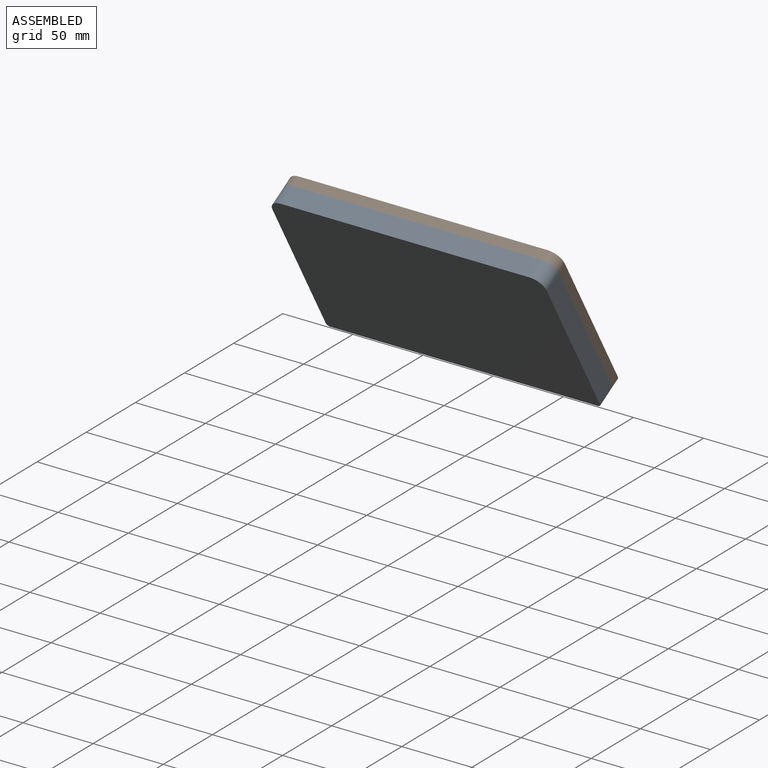
[diagram: assembled view]
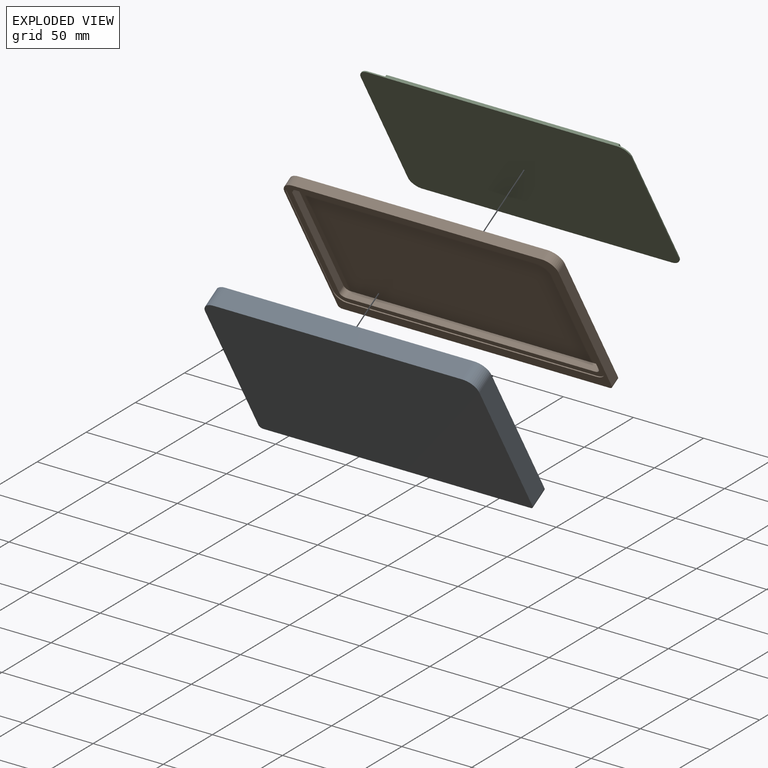
[diagram: exploded view]
GUIDED TOUR — MATED ASSEMBLY (Onshape document bb84c44a1d4bce17a46d19a1, AutoMate assembly bb84c44a1d4bce17a46d19a1_b7f1561dab899c9f86d58a68_f5c3d4f6c9674e467f2fc7fa_default)

This assembly has 3 components, labeled P0..P2 below (a component is one placed occurrence of a part; the same part can appear more than once), held together by 2 mates. A mate is a constraint between two components; its type names the relative motion it leaves free:
  FASTENED — locks the two components together rigidly (no relative motion).
Axis/direction vectors are unit vectors and 'through' points are millimeter coordinates, both in the assembly's world frame.

MATES
  1. FASTENED "Fastened 2": P1 <-> P0, direction (0.000, -0.866, -0.500) through (63.10, -5.15, 164.72) mm
  2. FASTENED "Fastened 1": P2 <-> P1, direction (0.000, -0.866, -0.500) through (63.10, -3.94, 164.04) mm

ASSEMBLY ORDER
  1. P1 — the base component [order verified]
  2. P2 [order verified]
  3. P0 [order verified]
(P2 verified with a relaxed clearance tolerance: the source model stores slight part interference there.)
Order-tag legend:
  [order verified] — this step's position reverses a verified removal order: the component was checked to insert without passing through the ones already placed.

Of the 3 components, 1 carries the full construction recipe — the FeatureScript program that regenerates the part's solid from scratch; the rest are supplied as boundary geometry only.
Each toured component is shown spotlighted twice — in the assembled view, then in the exploded view, where a leader line traces a displaced component back to its assembled socket (saturated green if recipe-attached, orange if geometry-only; every other component desaturated gray) — followed by its recipe or geometry summary and the mates that hold it.
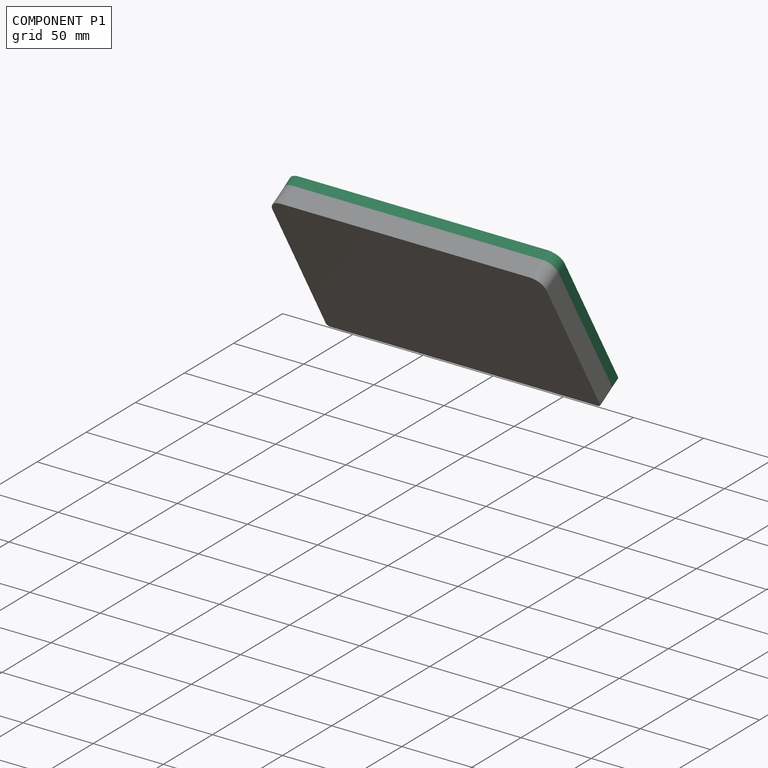
[diagram: component P1 — assembled]
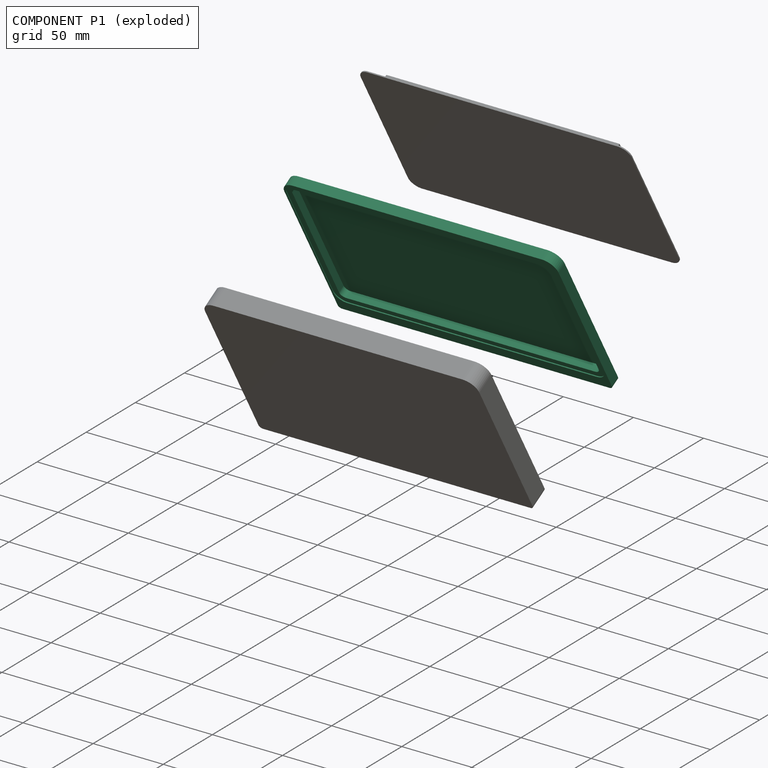
[diagram: component P1 — exploded]
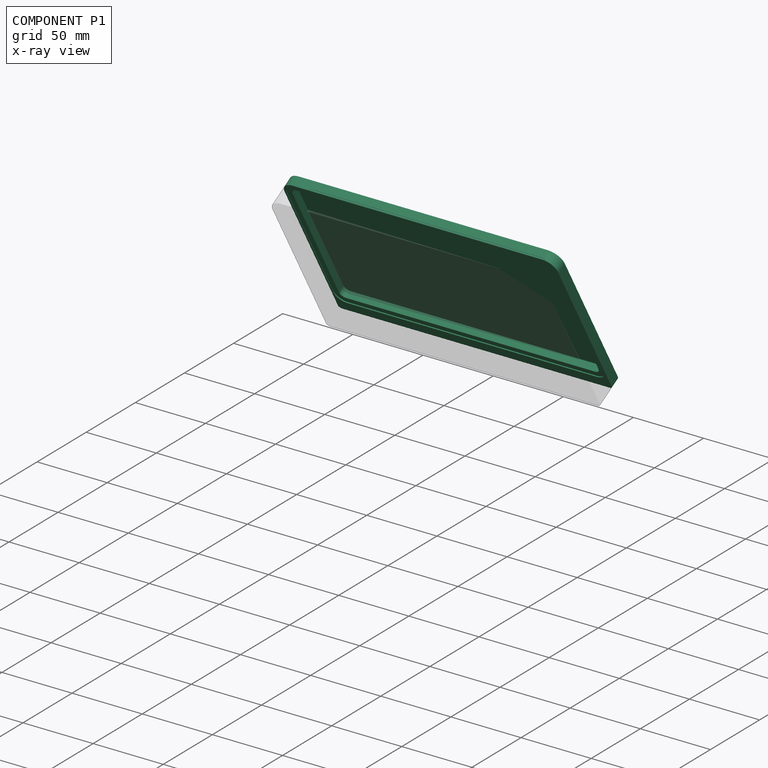
[diagram: component P1 — x-ray view]
COMPONENT P1 — recipe-attached (CADFS 00939960, mesh-verified: the recipe's output STEP matches this component's geometry to below the mesh-comparison resolution (tessellation chordal tolerance ~0.344 mm)).
Held by: FASTENED mate "Fastened 2" to P0; FASTENED mate "Fastened 1" to P2.
Construction recipe (FeatureScript — the CAD program that rebuilds this solid; sketch coordinates are in the units given by the * unit suffixes, e.g. mm):

FeatureScript 1948;
import(path : "onshape/std/geometry.fs", version : "1948.0");
import(path : "onshape/std/common.fs", version : "1948.0");
const mm = millimeter;
const VERTEX = EntityType.VERTEX;
const EDGE = EntityType.EDGE;
const FACE = EntityType.FACE;
const BODY = EntityType.BODY;
function v(x, y){return vector(x, y);}
function OD(order){return orderDisambiguation(order);}
function OSD(set){return originalSetDisambiguation(set);}
function TD(topology){return topologyDisambiguation(topology);}
function TDD(query){return trueDependencyDisambiguation(query);}
function sQuery(a, b, c) {return sketchEntityQuery(a, b, c);}

annotation { "Feature Type Name" : "Feature", "Feature Type Description" : "" }
export const myFeature = defineFeature(function(context is Context, id is Id, definition is map)
    precondition{}
    {
        {
            var Q0;
            Q0=qCreatedBy(makeId("Top.planeOp"),FACE);
            var sketch = newSketch(context, id + "F0", { "sketchPlane" : qUnion([Q0])});
            skLineSegment(sketch, "E0.bottom", {"start": v(-88.64, 56.51) * mm, "end": v(88.64, 56.51) * mm});
            skLineSegment(sketch, "E0.top", {"start": v(-88.64, -54.29) * mm, "end": v(88.64, -54.29) * mm});
            skLineSegment(sketch, "E0.left", {"start": v(-96.5, 48.65) * mm, "end": v(-96.5, -46.43) * mm});
            skLineSegment(sketch, "E0.right", {"start": v(96.5, 48.65) * mm, "end": v(96.5, -46.43) * mm});
            skPoint(sketch, "E1.visualSharp", {"position": v(-96.5, 56.51) * mm});
            skArc(sketch, "E1.filletArc", {"start": v(-88.64, 56.51) * mm, "mid": v(-94.2, 54.2) * mm, "end": v(-96.5, 48.65) * mm});
            skPoint(sketch, "E2.visualSharp", {"position": v(96.5, 56.51) * mm});
            skArc(sketch, "E2.filletArc", {"start": v(96.5, 48.65) * mm, "mid": v(94.2, 54.2) * mm, "end": v(88.64, 56.51) * mm});
            skPoint(sketch, "E3.visualSharp", {"position": v(96.5, -54.29) * mm});
            skArc(sketch, "E3.filletArc", {"start": v(88.64, -54.29) * mm, "mid": v(94.2, -51.99) * mm, "end": v(96.5, -46.43) * mm});
            skPoint(sketch, "E4.visualSharp", {"position": v(-96.5, -54.29) * mm});
            skArc(sketch, "E4.filletArc", {"start": v(-96.5, -46.43) * mm, "mid": v(-94.2, -51.99) * mm, "end": v(-88.64, -54.29) * mm});
            skArc(sketch, "E5.0", {"start": v(-88.64, 52.51) * mm, "mid": v(-91.37, 51.38) * mm, "end": v(-92.5, 48.65) * mm});
            skLineSegment(sketch, "E5.1", {"start": v(-92.5, 48.65) * mm, "end": v(-92.5, -46.43) * mm});
            skLineSegment(sketch, "E5.2", {"start": v(-88.64, 52.51) * mm, "end": v(88.64, 52.51) * mm});
            skArc(sketch, "E5.3", {"start": v(-92.5, -46.43) * mm, "mid": v(-91.37, -49.16) * mm, "end": v(-88.64, -50.29) * mm});
            skArc(sketch, "E5.4", {"start": v(92.5, 48.65) * mm, "mid": v(91.37, 51.38) * mm, "end": v(88.64, 52.51) * mm});
            skLineSegment(sketch, "E5.5", {"start": v(92.5, 48.65) * mm, "end": v(92.5, -46.43) * mm});
            skArc(sketch, "E5.6", {"start": v(88.64, -50.29) * mm, "mid": v(91.37, -49.16) * mm, "end": v(92.5, -46.43) * mm});
            skLineSegment(sketch, "E5.7", {"start": v(-88.64, -50.29) * mm, "end": v(88.64, -50.29) * mm});
            skLineSegment(sketch, "E6.0", {"start": v(-97.7, 48.65) * mm, "end": v(-97.7, -46.43) * mm});
            skLineSegment(sketch, "E6.1", {"start": v(97.7, 48.65) * mm, "end": v(97.7, -46.43) * mm});
            skArc(sketch, "E6.2", {"start": v(97.7, 48.65) * mm, "mid": v(95.05, 55.06) * mm, "end": v(88.64, 57.71) * mm});
            skLineSegment(sketch, "E6.3", {"start": v(-88.64, 57.71) * mm, "end": v(88.64, 57.71) * mm});
            skArc(sketch, "E6.4", {"start": v(-88.64, 57.71) * mm, "mid": v(-95.05, 55.06) * mm, "end": v(-97.7, 48.65) * mm});
            skLineSegment(sketch, "E7", {"start": v(-97.7, -46.43) * mm, "end": v(-97.7, -62.29) * mm});
            skLineSegment(sketch, "E8", {"start": v(-97.7, -62.29) * mm, "end": v(97.7, -62.29) * mm});
            skLineSegment(sketch, "E9", {"start": v(97.7, -62.29) * mm, "end": v(97.7, -46.43) * mm});
            skSolve(sketch);
        }
        {
            var Q0;
            Q0=makeQuery(id+"F0.imprint","IMPRINT",FACE,{"disambiguationData":[TD([[makeQuery(id+"F0.imprint","IMPRINT",EDGE,{"derivedFrom":sQuery(id+"F0.wireOp",EDGE,"E0.bottom")}),-1.0]])]});
            extrude(context, id + "F1", {"entities" : qUnion([Q0]), "depth" : 5.3 * mm, "offsetDistance" : 25 * mm});
        }
        {
            var Q0;
            Q0=makeQuery(id+"F0.imprint","IMPRINT",FACE,{"disambiguationData":[TD([[makeQuery(id+"F0.imprint","IMPRINT",EDGE,{"derivedFrom":sQuery(id+"F0.wireOp",EDGE,"E0.bottom")}),1.0]])]});
            extrude(context, id + "F2", {"entities" : qUnion([Q0]), "operationType" : NewBodyOperationType.ADD, "depth" : 6 * mm, "offsetDistance" : 25 * mm});
        }
        {
            var Q0;
            Q0=makeQuery(id+"F0.imprint","IMPRINT",FACE,{"disambiguationData":[TD([[makeQuery(id+"F0.imprint","IMPRINT",EDGE,{"derivedFrom":sQuery(id+"F0.wireOp",EDGE,"E0.bottom")}),1.0]])]});
            var Q1;
            Q1=makeQuery(id+"F0.imprint","IMPRINT",FACE,{"disambiguationData":[TD([[makeQuery(id+"F0.imprint","IMPRINT",EDGE,{"derivedFrom":sQuery(id+"F0.wireOp",EDGE,"E0.bottom")}),-1.0]])]});
            var Q2;
            Q2=makeQuery(id+"F0.imprint","IMPRINT",FACE,{"disambiguationData":[TD([[makeQuery(id+"F0.imprint","IMPRINT",EDGE,{"derivedFrom":sQuery(id+"F0.wireOp",EDGE,"E5.0")}),1.0]])]});
            extrude(context, id + "F3", {"entities" : qUnion([Q0, Q1, Q2]), "operationType" : NewBodyOperationType.ADD, "depth" : -1.2 * mm, "offsetDistance" : 25 * mm});
        }
        {
            var Q0;
            {var subQ0=sQuery(id+"F0.wireOp",EDGE,"E9");var subQ1=sQuery(id+"F0.wireOp",EDGE,"E8");Q0=makeQuery(id+"F3.boolean.opBoolean","MERGE",EDGE,{"derivedFrom":[makeQuery(id+"F2.opExtrude","SWEPT_EDGE",EDGE,{"disambiguationData":[OSD([subQ1,subQ0])]}),makeQuery(id+"F3.opExtrude","SWEPT_EDGE",EDGE,{"disambiguationData":[OSD([subQ1,subQ0])]})]});}
            var Q1;
            {var subQ0=sQuery(id+"F0.wireOp",EDGE,"E8");var subQ1=sQuery(id+"F0.wireOp",EDGE,"E7");Q1=makeQuery(id+"F3.boolean.opBoolean","MERGE",EDGE,{"derivedFrom":[makeQuery(id+"F2.opExtrude","SWEPT_EDGE",EDGE,{"disambiguationData":[OSD([subQ1,subQ0])]}),makeQuery(id+"F3.opExtrude","SWEPT_EDGE",EDGE,{"disambiguationData":[OSD([subQ1,subQ0])]})]});}
            fillet(context, id + "F4", {"entities" : qUnion([Q0, Q1]), "radius" : 2.5 * mm, "tangentPropagation" : true, "allowEdgeOverflow" : false});
        }
    });
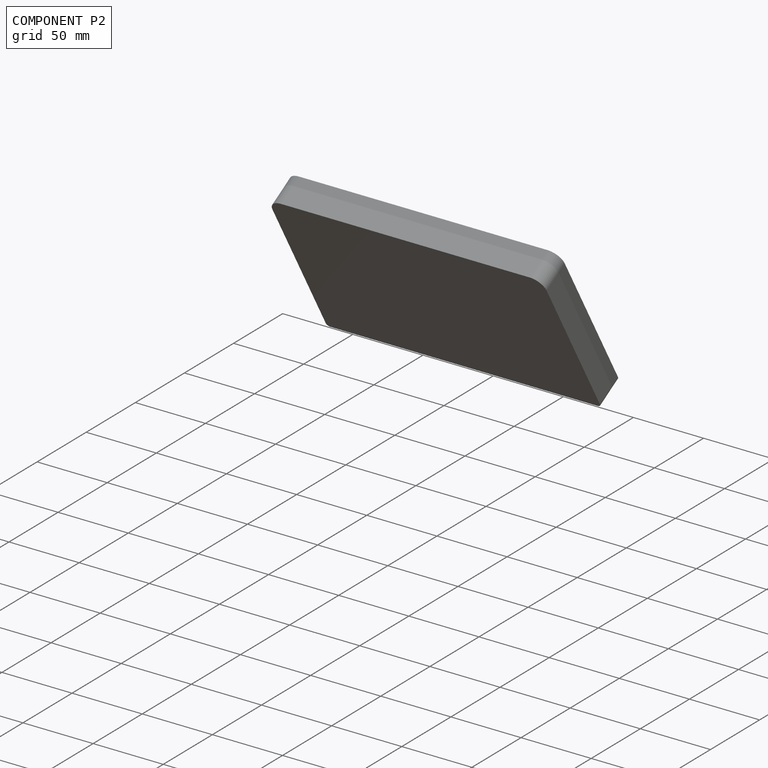
[diagram: component P2 — assembled]
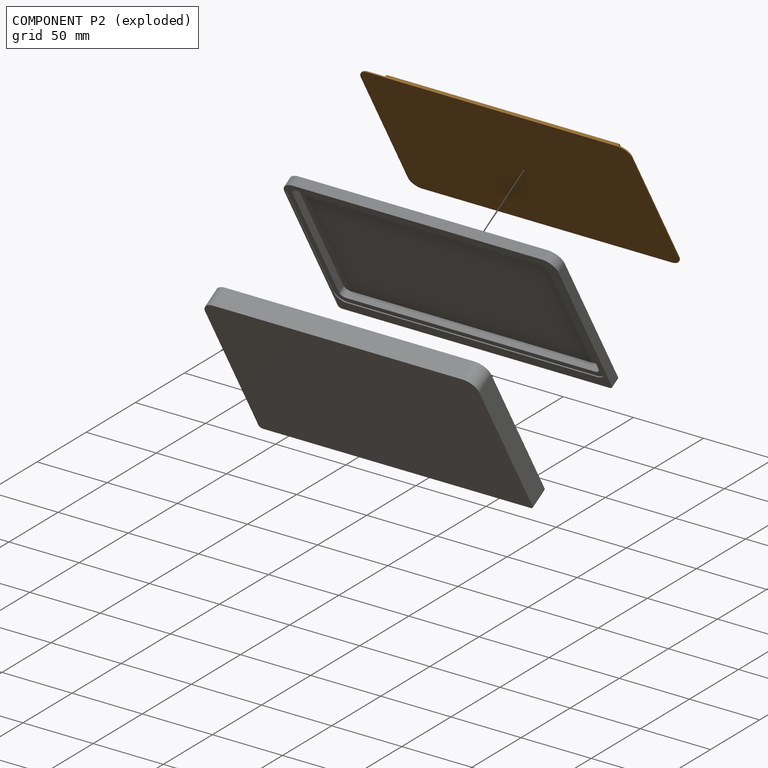
[diagram: component P2 — exploded]
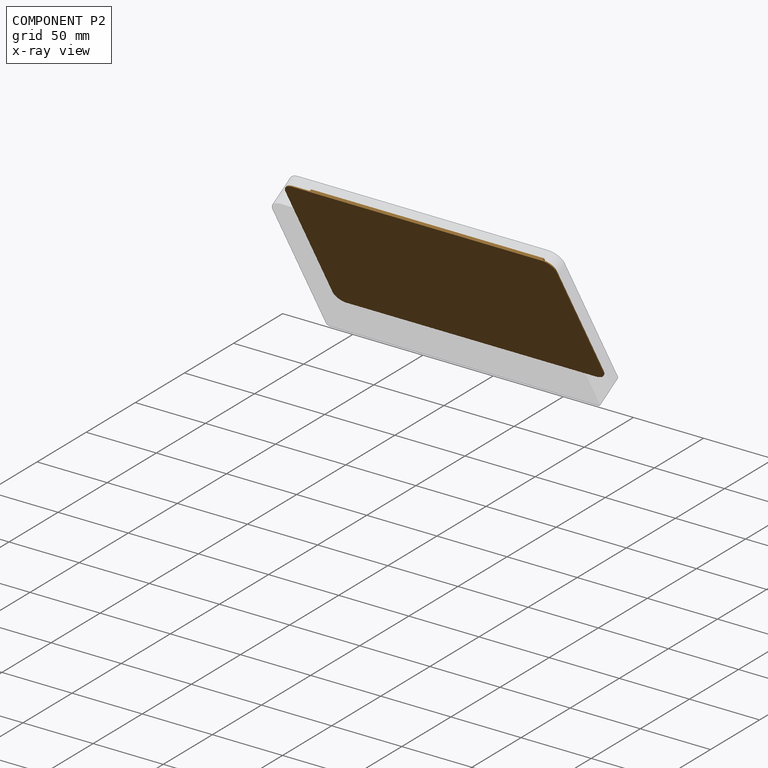
[diagram: component P2 — x-ray view]
COMPONENT P2 — geometry summary (no construction recipe available for this part):
  bounding box: 193.0 x 110.8 x 11.0 mm
  B-rep topology: 1 solid, 86 faces, 398 edges
  volume: 110239 mm^3 (47% of its bounding box)
Held by: FASTENED mate "Fastened 1" to P1.
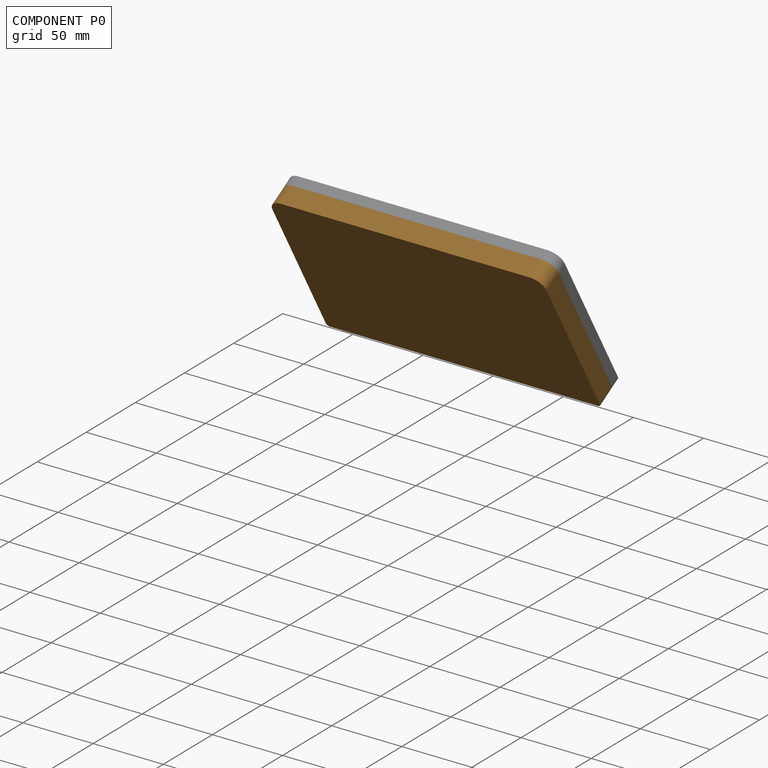
[diagram: component P0 — assembled]
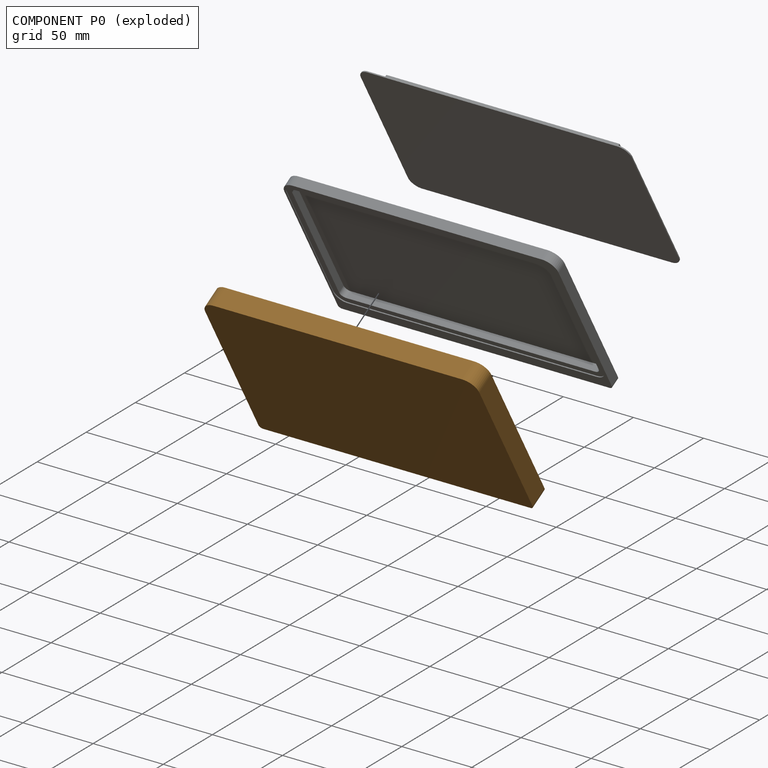
[diagram: component P0 — exploded]
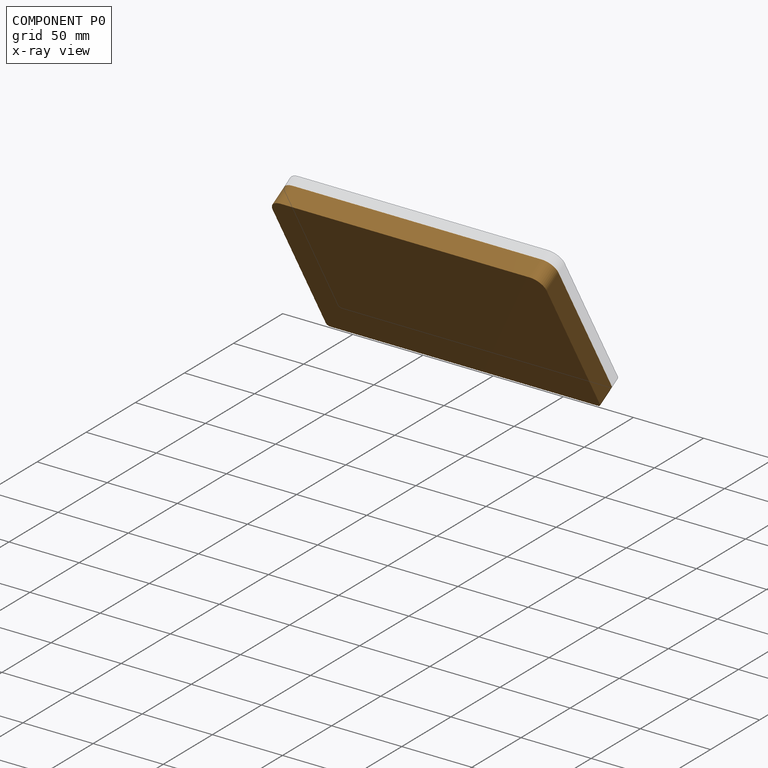
[diagram: component P0 — x-ray view]
COMPONENT P0 — geometry summary (no construction recipe available for this part):
  bounding box: 195.4 x 120.0 x 14.0 mm
  B-rep topology: 1 solid, 33 faces, 132 edges
  volume: 37740 mm^3 (11% of its bounding box)
Held by: FASTENED mate "Fastened 2" to P1.
PROVENANCE & LICENSES
Assembly (occurrences, transforms, mates, per-part STEP geometry): AutoMate dataset, Zenodo record 7776208, CC0.
Construction recipes: CADFS (HuggingFace VladPyatov/CADFS, CC-BY-4.0, layered over the ABC dataset), FeatureScript reconstruction programs keyed by ABC model id.
Join: ABC meta listings map ABC model id -> Onshape documentId; within a shared document, parts are matched by geometric signature (bounding-box dims + volume at 0.1% relative tolerance, exact B-rep face/solid counts).
Verification: 1 of this assembly's 3 components carries a recipe attachment, and every attachment is mesh-verified: the CADFS STEP and the AutoMate member STEP were compared as meshes in their shared local frame (symmetric sampled-point-to-mesh distance); worst across the 1 attachment: below the mesh-comparison resolution (tessellation chordal tolerance ~0.344 mm) on a 229 mm part.
Renders: orthographic iso camera (az 35 / el 25); the floor grid conveys scale (grid pitch printed in each image; no ruler). In the exploded view each component is displaced by its stored offset vector: the offsets alone carry the explosion direction (mate normal/axis signs are not orientation cues and do not encode it), and separation distances are assigned per mate-chain, not proportionally to assembly-order depth.
